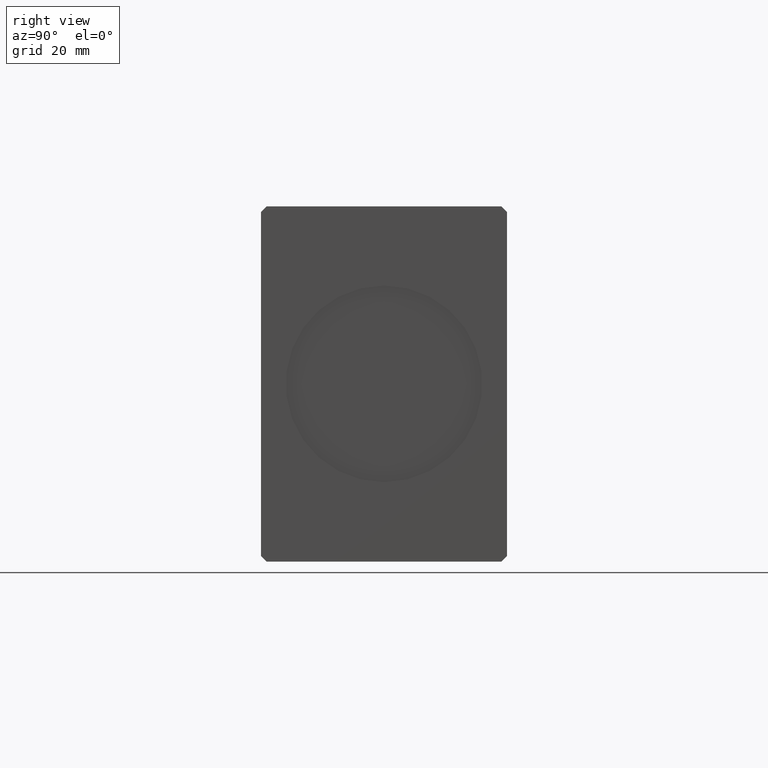
[diagram: clean part render]
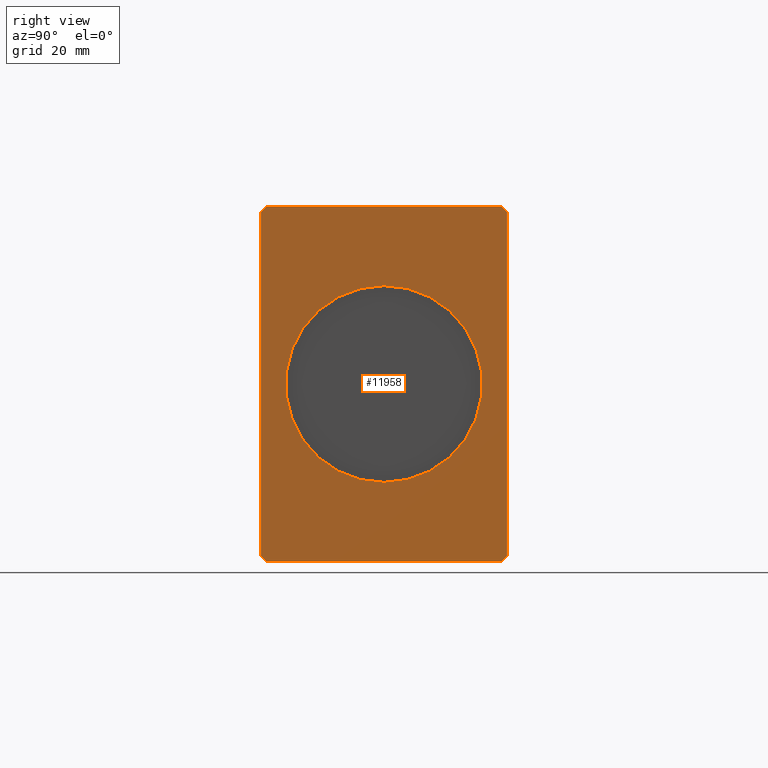
[diagram: same view with one face highlighted and labeled with its STEP entity id]
A machine part, right view. The second image highlights one B-rep face of the part: STEP entity #11958.
In plain terms, the highlighted planar face has unit normal (1, 0, 0).
Its self-contained STEP definition (entity closure, byte-faithful):
#151 = EDGE_CURVE ( 'NONE', #19716, #20785, #14333, .T. ) ;
#308 = DIRECTION ( 'NONE',  ( 0.000000000000000000, 1.000000000000000000, 1.613696256722610912E-16 ) ) ;
#576 = VERTEX_POINT ( 'NONE', #15400 ) ;
#1069 = CARTESIAN_POINT ( 'NONE',  ( 108.0000000000000000, 2.204364238465235428E-15, 18.00000000000000000 ) ) ;
#1216 = ORIENTED_EDGE ( 'NONE', *, *, #151, .T. ) ;
#1951 = VERTEX_POINT ( 'NONE', #13915 ) ;
#2359 = DIRECTION ( 'NONE',  ( 0.000000000000000000, 0.000000000000000000, -1.000000000000000000 ) ) ;
#2584 = CARTESIAN_POINT ( 'NONE',  ( 108.0000000000000000, 21.49999999999999645, -32.50000000000000000 ) ) ;
#3105 = VECTOR ( 'NONE', #5590, 1000.000000000000114 ) ;
#3764 = EDGE_CURVE ( 'NONE', #20785, #9993, #10248, .T. ) ;
#3980 = CARTESIAN_POINT ( 'NONE',  ( 108.0000000000000000, 21.49999999999999645, 32.50000000000000000 ) ) ;
#4000 = DIRECTION ( 'NONE',  ( 0.000000000000000000, 5.507058653894625853E-17, -1.000000000000000000 ) ) ;
#4682 = VERTEX_POINT ( 'NONE', #7621 ) ;
#4703 = EDGE_CURVE ( 'NONE', #26515, #576, #26311, .T. ) ;
#5384 = CARTESIAN_POINT ( 'NONE',  ( 108.0000000000000000, -22.50000000000001421, -31.50000000000000711 ) ) ;
#5590 = DIRECTION ( 'NONE',  ( 0.000000000000000000, 0.7071067811865451302, -0.7071067811865500152 ) ) ;
#6087 = VECTOR ( 'NONE', #16141, 1000.000000000000114 ) ;
#6266 = DIRECTION ( 'NONE',  ( 1.000000000000000000, 0.000000000000000000, 0.000000000000000000 ) ) ;
#6667 = EDGE_CURVE ( 'NONE', #9993, #26515, #7132, .T. ) ;
#7132 = LINE ( 'NONE', #10383, #12922 ) ;
#7367 = ORIENTED_EDGE ( 'NONE', *, *, #35655, .T. ) ;
#7621 = CARTESIAN_POINT ( 'NONE',  ( 108.0000000000000000, -21.50000000000001421, 32.50000000000000000 ) ) ;
#8229 = EDGE_LOOP ( 'NONE', ( #15804, #35121 ) ) ;
#9200 = DIRECTION ( 'NONE',  ( 0.000000000000000000, 0.000000000000000000, 1.000000000000000000 ) ) ;
#9993 = VERTEX_POINT ( 'NONE', #2584 ) ;
#10248 = LINE ( 'NONE', #28332, #10249 ) ;
#10249 = VECTOR ( 'NONE', #308, 1000.000000000000000 ) ;
#10383 = CARTESIAN_POINT ( 'NONE',  ( 108.0000000000000000, 21.49999999999999645, -32.50000000000000000 ) ) ;
#10422 = CARTESIAN_POINT ( 'NONE',  ( 108.0000000000000000, -21.50000000000001776, -32.50000000000000711 ) ) ;
#10682 = ORIENTED_EDGE ( 'NONE', *, *, #3764, .T. ) ;
#10795 = ORIENTED_EDGE ( 'NONE', *, *, #25484, .T. ) ;
#11246 = CIRCLE ( 'NONE', #32013, 18.00000000000000000 ) ;
#11588 = CARTESIAN_POINT ( 'NONE',  ( 108.0000000000000000, 22.49999999999999645, -31.50000000000000000 ) ) ;
#11958 = ADVANCED_FACE ( 'NONE', ( #18910, #34535 ), #31688, .T. ) ;
#12177 = DIRECTION ( 'NONE',  ( 0.000000000000000000, -0.7071067811865474617, -0.7071067811865474617 ) ) ;
#12922 = VECTOR ( 'NONE', #20878, 1000.000000000000114 ) ;
#12930 = EDGE_CURVE ( 'NONE', #13505, #23943, #11246, .T. ) ;
#13360 = ORIENTED_EDGE ( 'NONE', *, *, #26110, .T. ) ;
#13505 = VERTEX_POINT ( 'NONE', #37049 ) ;
#13915 = CARTESIAN_POINT ( 'NONE',  ( 108.0000000000000000, -22.50000000000001776, 31.50000000000000000 ) ) ;
#14154 = ORIENTED_EDGE ( 'NONE', *, *, #6667, .T. ) ;
#14333 = LINE ( 'NONE', #5384, #3105 ) ;
#15087 = CARTESIAN_POINT ( 'NONE',  ( 108.0000000000000000, 22.49999999999999645, -31.50000000000000000 ) ) ;
#15400 = CARTESIAN_POINT ( 'NONE',  ( 108.0000000000000000, 22.49999999999999645, 31.50000000000000000 ) ) ;
#15652 = DIRECTION ( 'NONE',  ( 0.000000000000000000, 0.000000000000000000, -1.000000000000000000 ) ) ;
#15804 = ORIENTED_EDGE ( 'NONE', *, *, #12930, .F. ) ;
#15937 = CARTESIAN_POINT ( 'NONE',  ( 108.0000000000000000, 22.49999999999999645, 31.50000000000000000 ) ) ;
#16141 = DIRECTION ( 'NONE',  ( 0.000000000000000000, -0.7071067811865474617, 0.7071067811865474617 ) ) ;
#16954 = DIRECTION ( 'NONE',  ( 0.000000000000000000, -1.000000000000000000, 0.000000000000000000 ) ) ;
#17784 = CARTESIAN_POINT ( 'NONE',  ( 108.0000000000000000, 0.000000000000000000, 0.000000000000000000 ) ) ;
#17807 = CIRCLE ( 'NONE', #24272, 18.00000000000000000 ) ;
#18668 = DIRECTION ( 'NONE',  ( 0.000000000000000000, 0.000000000000000000, -1.000000000000000000 ) ) ;
#18910 = FACE_BOUND ( 'NONE', #8229, .T. ) ;
#19716 = VERTEX_POINT ( 'NONE', #24434 ) ;
#20027 = CARTESIAN_POINT ( 'NONE',  ( 108.0000000000000000, -22.50000000000001776, 31.50000000000000000 ) ) ;
#20785 = VERTEX_POINT ( 'NONE', #10422 ) ;
#20878 = DIRECTION ( 'NONE',  ( 0.000000000000000000, 0.7071067811865474617, 0.7071067811865474617 ) ) ;
#21009 = AXIS2_PLACEMENT_3D ( 'NONE', #31479, #24990, #15652 ) ;
#21532 = EDGE_LOOP ( 'NONE', ( #13360, #7367, #10795, #34385, #1216, #10682, #14154, #31198 ) ) ;
#22464 = CARTESIAN_POINT ( 'NONE',  ( 108.0000000000000000, 21.49999999999999645, 32.50000000000000000 ) ) ;
#23462 = EDGE_CURVE ( 'NONE', #23943, #13505, #17807, .T. ) ;
#23943 = VERTEX_POINT ( 'NONE', #1069 ) ;
#24272 = AXIS2_PLACEMENT_3D ( 'NONE', #17784, #30164, #2359 ) ;
#24434 = CARTESIAN_POINT ( 'NONE',  ( 108.0000000000000000, -22.50000000000001421, -31.50000000000000711 ) ) ;
#24990 = DIRECTION ( 'NONE',  ( 1.000000000000000000, 0.000000000000000000, 0.000000000000000000 ) ) ;
#25110 = VECTOR ( 'NONE', #16954, 1000.000000000000000 ) ;
#25484 = EDGE_CURVE ( 'NONE', #4682, #1951, #27395, .T. ) ;
#26110 = EDGE_CURVE ( 'NONE', #576, #33163, #37471, .T. ) ;
#26311 = LINE ( 'NONE', #15087, #29684 ) ;
#26515 = VERTEX_POINT ( 'NONE', #11588 ) ;
#27395 = LINE ( 'NONE', #27809, #37869 ) ;
#27809 = CARTESIAN_POINT ( 'NONE',  ( 108.0000000000000000, -21.50000000000001421, 32.50000000000000000 ) ) ;
#28332 = CARTESIAN_POINT ( 'NONE',  ( 108.0000000000000000, -21.50000000000001776, -32.50000000000000711 ) ) ;
#28344 = EDGE_CURVE ( 'NONE', #1951, #19716, #35257, .T. ) ;
#29684 = VECTOR ( 'NONE', #9200, 1000.000000000000000 ) ;
#30164 = DIRECTION ( 'NONE',  ( 1.000000000000000000, 0.000000000000000000, 0.000000000000000000 ) ) ;
#31198 = ORIENTED_EDGE ( 'NONE', *, *, #4703, .T. ) ;
#31479 = CARTESIAN_POINT ( 'NONE',  ( 108.0000000000000000, 0.000000000000000000, 0.000000000000000000 ) ) ;
#31688 = PLANE ( 'NONE',  #21009 ) ;
#32013 = AXIS2_PLACEMENT_3D ( 'NONE', #34092, #6266, #18668 ) ;
#32392 = LINE ( 'NONE', #3980, #25110 ) ;
#33163 = VERTEX_POINT ( 'NONE', #22464 ) ;
#34092 = CARTESIAN_POINT ( 'NONE',  ( 108.0000000000000000, 0.000000000000000000, 0.000000000000000000 ) ) ;
#34385 = ORIENTED_EDGE ( 'NONE', *, *, #28344, .T. ) ;
#34535 = FACE_OUTER_BOUND ( 'NONE', #21532, .T. ) ;
#35121 = ORIENTED_EDGE ( 'NONE', *, *, #23462, .F. ) ;
#35257 = LINE ( 'NONE', #20027, #35308 ) ;
#35308 = VECTOR ( 'NONE', #4000, 1000.000000000000000 ) ;
#35655 = EDGE_CURVE ( 'NONE', #33163, #4682, #32392, .T. ) ;
#37049 = CARTESIAN_POINT ( 'NONE',  ( 108.0000000000000000, 0.000000000000000000, -18.00000000000000000 ) ) ;
#37471 = LINE ( 'NONE', #15937, #6087 ) ;
#37869 = VECTOR ( 'NONE', #12177, 1000.000000000000114 ) ;